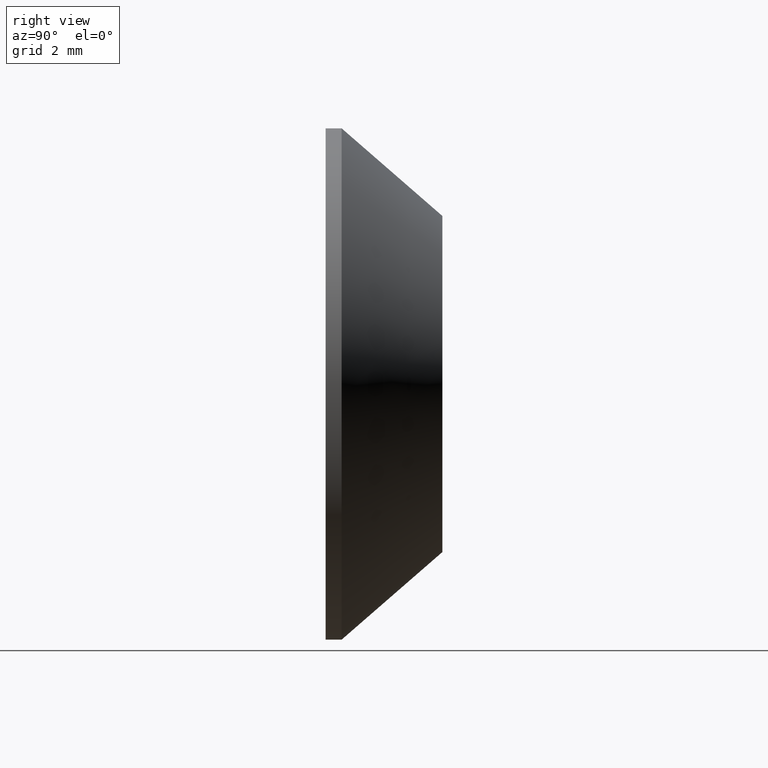
[diagram: clean part render]
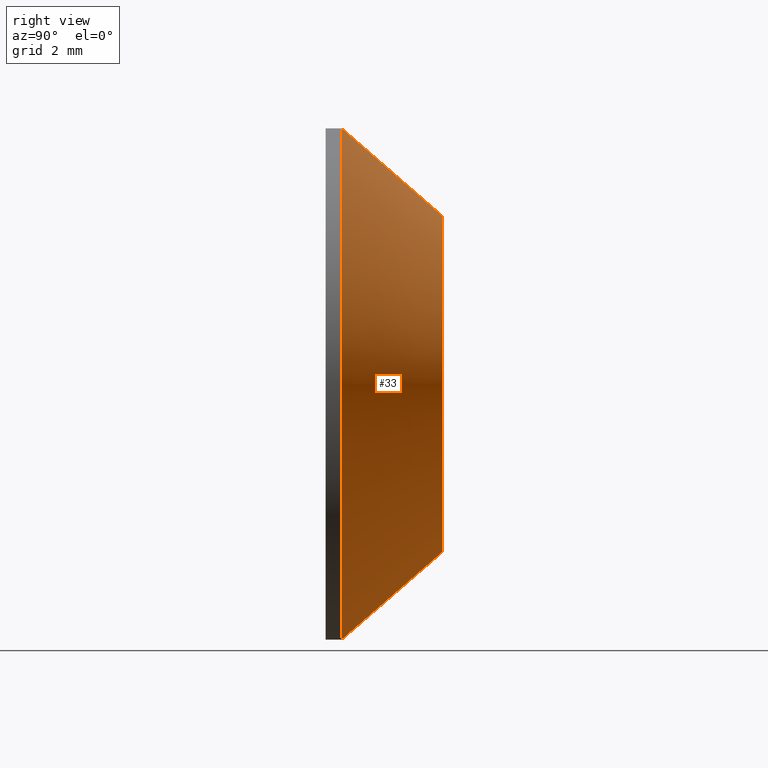
[diagram: same view with one face highlighted and labeled with its STEP entity id]
A machine part, right view. The second image highlights one B-rep face of the part: STEP entity #33.
In plain terms, the highlighted conical surface has half-angle 41.009 deg.
Its self-contained STEP definition (entity closure, byte-faithful):
#5 = EDGE_LOOP ( 'NONE', ( #36, #16, #14, #18 ) ) ;
#14 = ORIENTED_EDGE ( 'NONE', *, *, #21, .F. ) ;
#16 = ORIENTED_EDGE ( 'NONE', *, *, #39, .T. ) ;
#17 = VERTEX_POINT ( 'NONE', #197 ) ;
#18 = ORIENTED_EDGE ( 'NONE', *, *, #37, .F. ) ;
#21 = EDGE_CURVE ( 'NONE', #25, #34, #195, .T. ) ;
#25 = VERTEX_POINT ( 'NONE', #192 ) ;
#26 = VERTEX_POINT ( 'NONE', #185 ) ;
#27 = EDGE_CURVE ( 'NONE', #26, #17, #194, .T. ) ;
#33 = ADVANCED_FACE ( 'NONE', ( #204 ), #184, .T. ) ;
#34 = VERTEX_POINT ( 'NONE', #224 ) ;
#36 = ORIENTED_EDGE ( 'NONE', *, *, #27, .T. ) ;
#37 = EDGE_CURVE ( 'NONE', #26, #25, #218, .T. ) ;
#39 = EDGE_CURVE ( 'NONE', #17, #34, #60, .T. ) ;
#56 = DIRECTION ( 'NONE',  ( 8.035871629012636900E-017, -0.7546055221635046300, 0.6561787149247867400 ) ) ;
#57 = VECTOR ( 'NONE', #56, 1000.000000000000000 ) ;
#58 = CARTESIAN_POINT ( 'NONE',  ( 7.041719095097280900E-016, 4.000000000000000000, 5.750000000000000000 ) ) ;
#60 = LINE ( 'NONE', #58, #57 ) ;
#62 = VECTOR ( 'NONE', #216, 1000.000000000000000 ) ;
#94 = DIRECTION ( 'NONE',  ( 0.0000000000000000000, -1.000000000000000000, 0.0000000000000000000 ) ) ;
#98 = CARTESIAN_POINT ( 'NONE',  ( 0.0000000000000000000, 4.000000000000000000, 0.0000000000000000000 ) ) ;
#102 = DIRECTION ( 'NONE',  ( 0.0000000000000000000, 0.0000000000000000000, -1.000000000000000000 ) ) ;
#103 = DIRECTION ( 'NONE',  ( 0.0000000000000000000, -1.000000000000000000, 0.0000000000000000000 ) ) ;
#104 = CARTESIAN_POINT ( 'NONE',  ( 0.0000000000000000000, 4.000000000000000000, 0.0000000000000000000 ) ) ;
#105 = AXIS2_PLACEMENT_3D ( 'NONE', #104, #103, #102 ) ;
#106 = DIRECTION ( 'NONE',  ( 0.0000000000000000000, 0.0000000000000000000, -1.000000000000000000 ) ) ;
#184 = CONICAL_SURFACE ( 'NONE', #212, 5.750000000000000000, 0.7157435896688801900 ) ;
#185 = CARTESIAN_POINT ( 'NONE',  ( 0.0000000000000000000, 4.000000000000000000, -5.750000000000000000 ) ) ;
#187 = DIRECTION ( 'NONE',  ( 0.0000000000000000000, 0.0000000000000000000, -1.000000000000000000 ) ) ;
#188 = DIRECTION ( 'NONE',  ( 0.0000000000000000000, -1.000000000000000000, 0.0000000000000000000 ) ) ;
#189 = CARTESIAN_POINT ( 'NONE',  ( 0.0000000000000000000, 0.5499999999999983800, 0.0000000000000000000 ) ) ;
#190 = AXIS2_PLACEMENT_3D ( 'NONE', #189, #188, #187 ) ;
#192 = CARTESIAN_POINT ( 'NONE',  ( 0.0000000000000000000, 0.5499999999999983800, -8.750000000000000000 ) ) ;
#194 = CIRCLE ( 'NONE', #105, 5.750000000000000000 ) ;
#195 = CIRCLE ( 'NONE', #190, 8.750000000000000000 ) ;
#197 = CARTESIAN_POINT ( 'NONE',  ( 8.878689293818312000E-016, 4.000000000000000000, 5.750000000000000000 ) ) ;
#204 = FACE_OUTER_BOUND ( 'NONE', #5, .T. ) ;
#212 = AXIS2_PLACEMENT_3D ( 'NONE', #98, #94, #106 ) ;
#216 = DIRECTION ( 'NONE',  ( 0.0000000000000000000, -0.7546055221635046300, -0.6561787149247867400 ) ) ;
#217 = CARTESIAN_POINT ( 'NONE',  ( 0.0000000000000000000, 4.000000000000000000, -5.750000000000000000 ) ) ;
#218 = LINE ( 'NONE', #217, #62 ) ;
#224 = CARTESIAN_POINT ( 'NONE',  ( 1.071565949253934100E-015, 0.5499999999999983800, 8.750000000000000000 ) ) ;